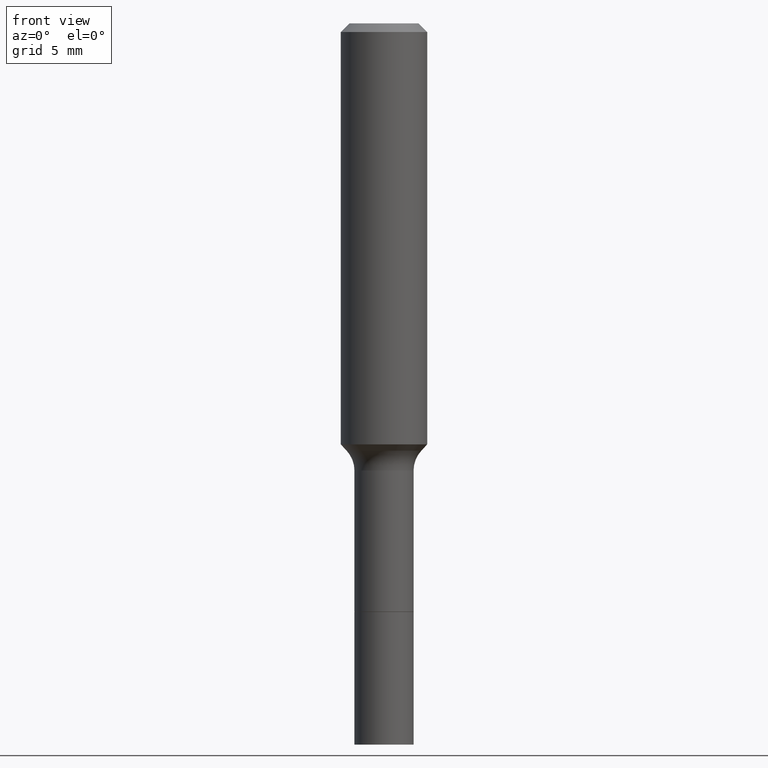
[diagram: clean part render]
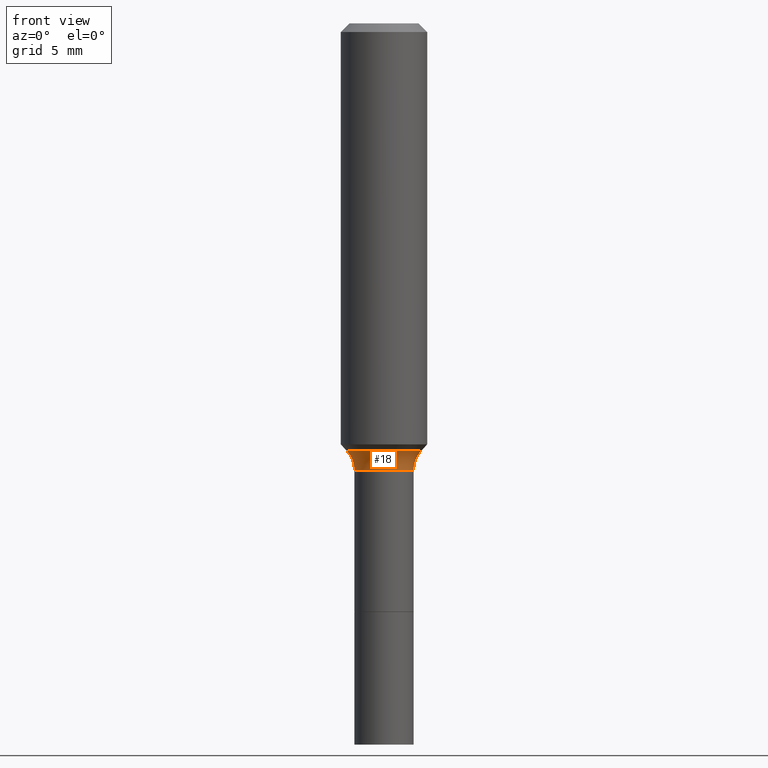
[diagram: same view with one face highlighted and labeled with its STEP entity id]
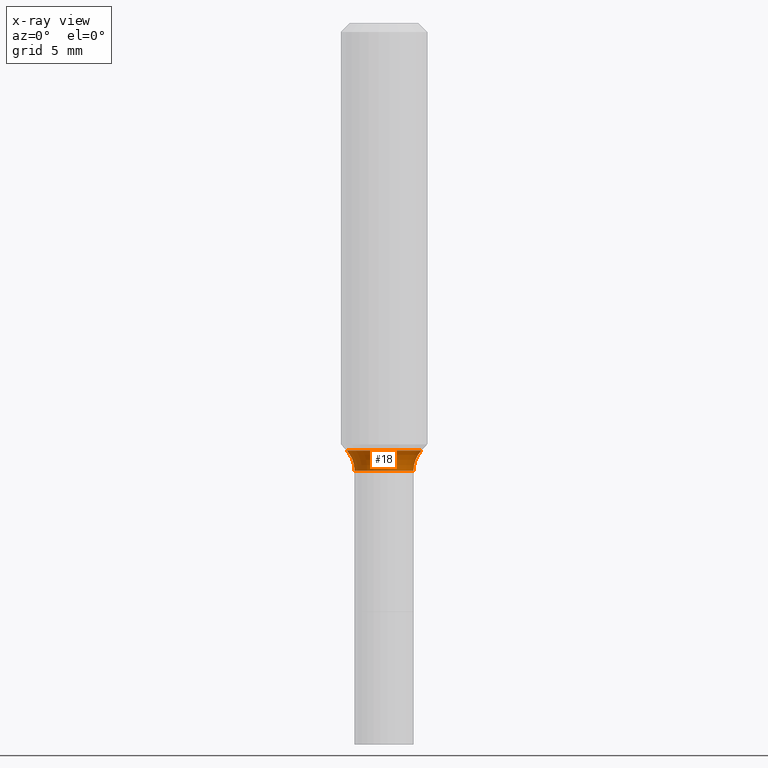
[diagram: x-ray of the same camera — body ghosted, the highlighted face saturated]
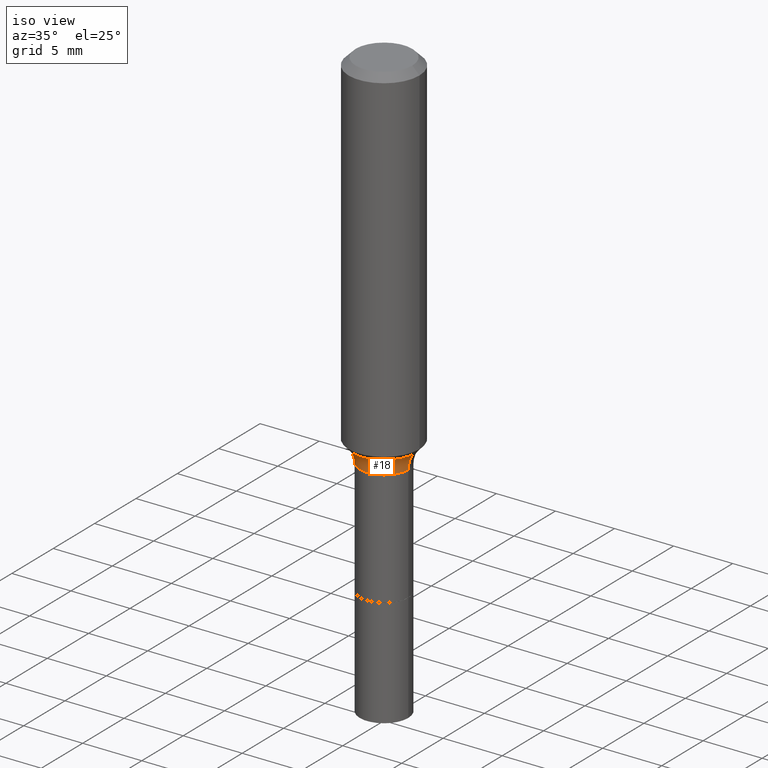
[diagram: same view with one face highlighted and labeled with its STEP entity id]
A machine part, front view. The second image highlights one B-rep face of the part: STEP entity #18.
The next image is the same camera in x-ray: the body ghosted, the highlighted face saturated — about 0% of this face is hidden behind the body in this view.
A second angle (iso view) of the same face is appended — the face is thin or edge-on in the first view.
In plain terms, the highlighted toroidal blend (fillet) surface has major radius 4.0818 mm and minor (blend) radius 2.032 mm.
Its self-contained STEP definition (entity closure, byte-faithful):
#1 = VERTEX_POINT ( 'NONE', #60 ) ;
#8 = EDGE_CURVE ( 'NONE', #140, #25, #467, .T. ) ;
#18 = ADVANCED_FACE ( 'NONE', ( #424 ), #72, .F. ) ;
#25 = VERTEX_POINT ( 'NONE', #62 ) ;
#31 = DIRECTION ( 'NONE',  ( -1.000000000000000000, 7.105427357601005014E-15, 0.000000000000000000 ) ) ;
#38 = DIRECTION ( 'NONE',  ( 1.000000000000000000, -6.982962677686265133E-15, 0.000000000000000000 ) ) ;
#41 = CARTESIAN_POINT ( 'NONE',  ( 0.1606999999999999540, -5.383515076362241754E-15, -1.220499999999999918 ) ) ;
#60 = CARTESIAN_POINT ( 'NONE',  ( -0.08069999999999993845, -4.360928014361675851E-15, -1.220499999999999918 ) ) ;
#62 = CARTESIAN_POINT ( 'NONE',  ( 0.1021917038704663189, -4.784459064372305564E-15, -1.165940131195000173 ) ) ;
#72 = TOROIDAL_SURFACE ( 'NONE', #211, 0.1606999999999999540, 0.08000000000000000167 ) ;
#77 = AXIS2_PLACEMENT_3D ( 'NONE', #429, #390, #31 ) ;
#90 = VERTEX_POINT ( 'NONE', #475 ) ;
#99 = ORIENTED_EDGE ( 'NONE', *, *, #109, .T. ) ;
#104 = DIRECTION ( 'NONE',  ( 1.000000000000000000, -6.982962677686261977E-15, 0.000000000000000000 ) ) ;
#107 = DIRECTION ( 'NONE',  ( -2.445468806185136597E-29, 3.491481338843145583E-15, 1.000000000000000000 ) ) ;
#109 = EDGE_CURVE ( 'NONE', #1, #90, #500, .T. ) ;
#140 = VERTEX_POINT ( 'NONE', #298 ) ;
#150 = AXIS2_PLACEMENT_3D ( 'NONE', #492, #107, #104 ) ;
#168 = DIRECTION ( 'NONE',  ( -6.982962677686266711E-15, -1.000000000000000000, 3.491481338843145583E-15 ) ) ;
#208 = ORIENTED_EDGE ( 'NONE', *, *, #8, .F. ) ;
#211 = AXIS2_PLACEMENT_3D ( 'NONE', #227, #382, #412 ) ;
#227 = CARTESIAN_POINT ( 'NONE',  ( 2.984694677948959472E-29, -4.261352974058059028E-15, -1.220499999999999918 ) ) ;
#237 = EDGE_CURVE ( 'NONE', #25, #90, #376, .T. ) ;
#252 = ORIENTED_EDGE ( 'NONE', *, *, #441, .T. ) ;
#282 = AXIS2_PLACEMENT_3D ( 'NONE', #410, #335, #38 ) ;
#298 = CARTESIAN_POINT ( 'NONE',  ( -0.1021917038704663189, -3.344742481874600482E-15, -1.165940131195000173 ) ) ;
#335 = DIRECTION ( 'NONE',  ( -2.445468806185136597E-29, 3.491481338843145583E-15, 1.000000000000000000 ) ) ;
#376 = CIRCLE ( 'NONE', #408, 0.08000000000000000167 ) ;
#382 = DIRECTION ( 'NONE',  ( -2.445468806185136597E-29, 3.491481338843145583E-15, 1.000000000000000000 ) ) ;
#390 = DIRECTION ( 'NONE',  ( 7.105427357601001859E-15, 1.000000000000000000, -3.491481338843145583E-15 ) ) ;
#408 = AXIS2_PLACEMENT_3D ( 'NONE', #41, #168, #451 ) ;
#410 = CARTESIAN_POINT ( 'NONE',  ( 2.984694677948959472E-29, -4.261352974058059028E-15, -1.220499999999999918 ) ) ;
#412 = DIRECTION ( 'NONE',  ( 1.000000000000000000, -6.982962677686265922E-15, 4.883557194083112901E-29 ) ) ;
#419 = EDGE_LOOP ( 'NONE', ( #208, #252, #99, #465 ) ) ;
#424 = FACE_OUTER_BOUND ( 'NONE', #419, .T. ) ;
#429 = CARTESIAN_POINT ( 'NONE',  ( -0.1606999999999999540, -3.119510797691578356E-15, -1.220499999999999918 ) ) ;
#435 = CIRCLE ( 'NONE', #77, 0.08000000000000000167 ) ;
#441 = EDGE_CURVE ( 'NONE', #140, #1, #435, .T. ) ;
#451 = DIRECTION ( 'NONE',  ( 1.000000000000000000, -6.982962677686271444E-15, 0.000000000000000000 ) ) ;
#465 = ORIENTED_EDGE ( 'NONE', *, *, #237, .F. ) ;
#467 = CIRCLE ( 'NONE', #150, 0.1021917038704663744 ) ;
#475 = CARTESIAN_POINT ( 'NONE',  ( 0.08069999999999993845, -4.824878062147340101E-15, -1.220499999999999918 ) ) ;
#492 = CARTESIAN_POINT ( 'NONE',  ( 2.851270220716778580E-29, -4.070858210275671756E-15, -1.165940131195000173 ) ) ;
#500 = CIRCLE ( 'NONE', #282, 0.08069999999999993845 ) ;